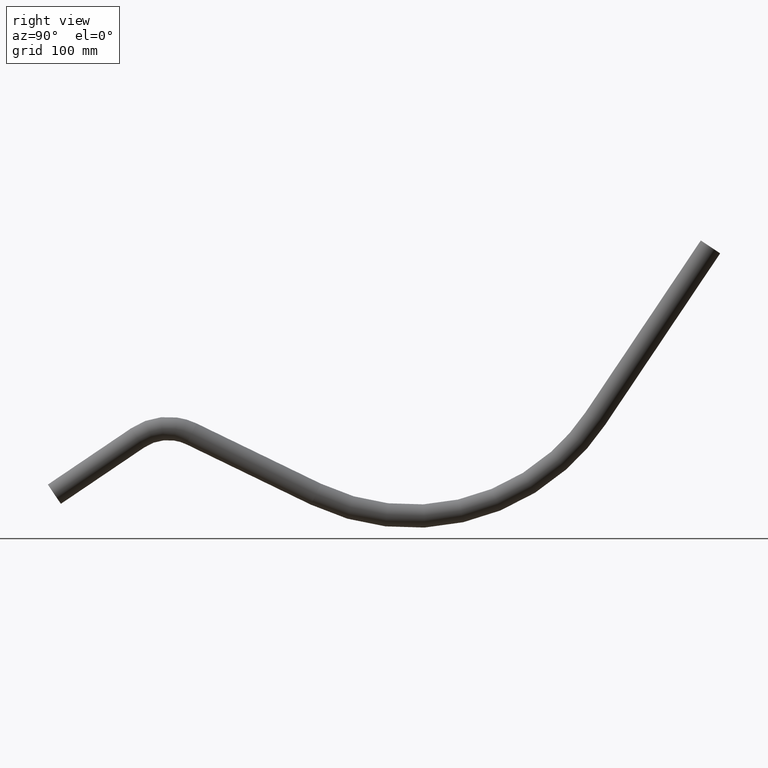
[diagram: clean part render]
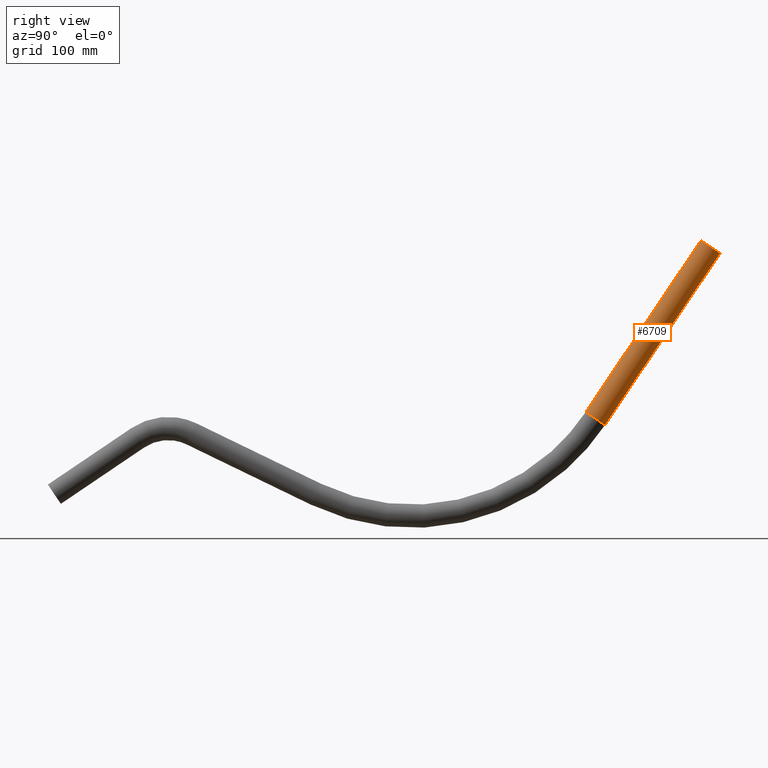
[diagram: same view with one face highlighted and labeled with its STEP entity id]
A machine part, right view. The second image highlights one B-rep face of the part: STEP entity #6709.
In plain terms, the highlighted cylindrical surface (bore or boss wall) has radius 16.85 mm, axis along (0, 0.557, 0.8305).
Its self-contained STEP definition (entity closure, byte-faithful):
#910 = AXIS2_PLACEMENT_3D ( 'NONE', #4094, #8441, #7293 ) ;
#1344 = CIRCLE ( 'NONE', #910, 16.85000000000006537 ) ;
#1915 = EDGE_CURVE ( 'NONE', #5423, #5423, #2417, .T. ) ;
#2417 = CIRCLE ( 'NONE', #12963, 16.85000000000004761 ) ;
#2762 = DIRECTION ( 'NONE',  ( 0.000000000000000000, 0.5570136925899753511, 0.8305033090044136035 ) ) ;
#3209 = DIRECTION ( 'NONE',  ( 0.000000000000000000, 0.5570136925899753511, 0.8305033090044136035 ) ) ;
#4094 = CARTESIAN_POINT ( 'NONE',  ( 0.000000000000000000, 951.7439139103422576, 358.6927031343387853 ) ) ;
#5030 = AXIS2_PLACEMENT_3D ( 'NONE', #9416, #2762, #8472 ) ;
#5313 = EDGE_CURVE ( 'NONE', #8526, #8526, #1344, .T. ) ;
#5423 = VERTEX_POINT ( 'NONE', #5760 ) ;
#5760 = CARTESIAN_POINT ( 'NONE',  ( 0.000000000000000000, 770.7768936192194360, 119.1228129365470068 ) ) ;
#5857 = ORIENTED_EDGE ( 'NONE', *, *, #5313, .F. ) ;
#6709 = ADVANCED_FACE ( 'NONE', ( #13837, #12415 ), #8072, .T. ) ;
#7293 = DIRECTION ( 'NONE',  ( 0.000000000000000000, -0.8305033090044134925, 0.5570136925899753511 ) ) ;
#8072 = CYLINDRICAL_SURFACE ( 'NONE', #5030, 16.85000000000004761 ) ;
#8441 = DIRECTION ( 'NONE',  ( 0.000000000000000000, 0.5570136925899753511, 0.8305033090044136035 ) ) ;
#8445 = ORIENTED_EDGE ( 'NONE', *, *, #1915, .T. ) ;
#8472 = DIRECTION ( 'NONE',  ( 0.000000000000000000, -0.8305033090044143806, 0.5570136925899742408 ) ) ;
#8526 = VERTEX_POINT ( 'NONE', #9139 ) ;
#9139 = CARTESIAN_POINT ( 'NONE',  ( 0.000000000000000000, 937.7499331536179170, 368.0783838544799096 ) ) ;
#9416 = CARTESIAN_POINT ( 'NONE',  ( 0.000000000000000000, 784.7708743759436629, 109.7371322164065788 ) ) ;
#11992 = CARTESIAN_POINT ( 'NONE',  ( 0.000000000000000000, 784.7708743759438903, 109.7371322164059109 ) ) ;
#12415 = FACE_OUTER_BOUND ( 'NONE', #13271, .T. ) ;
#12963 = AXIS2_PLACEMENT_3D ( 'NONE', #11992, #3209, #13116 ) ;
#13116 = DIRECTION ( 'NONE',  ( 0.000000000000000000, -0.8305033090044143806, 0.5570136925899742408 ) ) ;
#13271 = EDGE_LOOP ( 'NONE', ( #8445 ) ) ;
#13583 = EDGE_LOOP ( 'NONE', ( #5857 ) ) ;
#13837 = FACE_OUTER_BOUND ( 'NONE', #13583, .T. ) ;